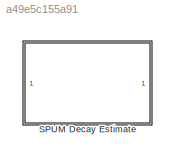
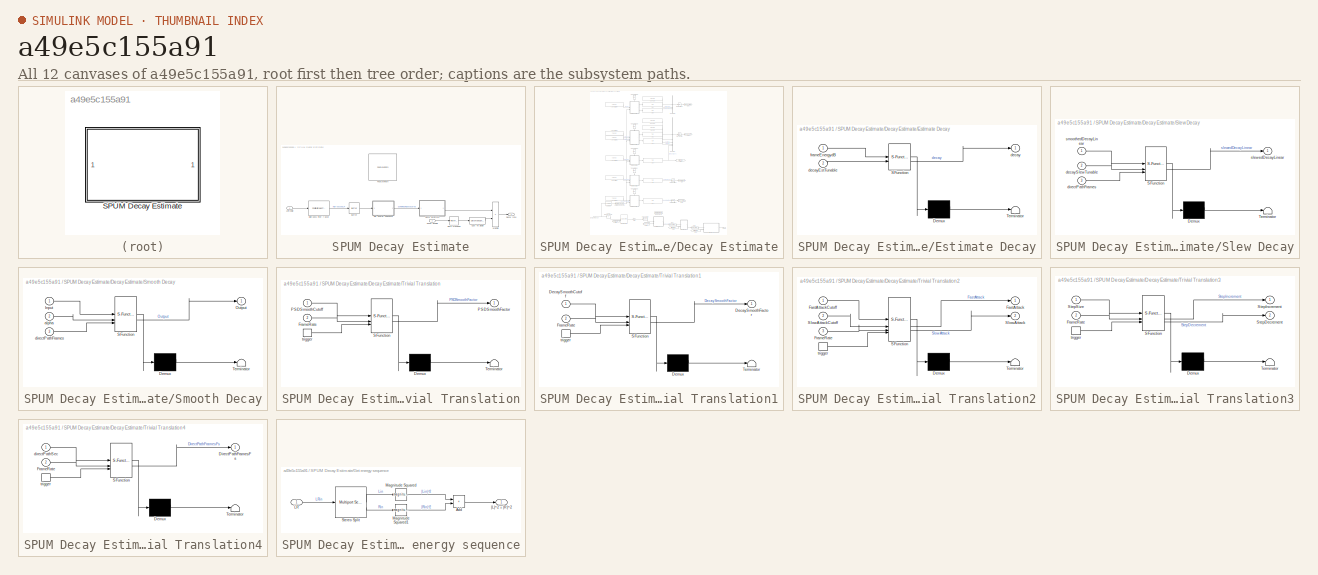
[diagram: thumbnail index - all 12 canvases of the model, root first then tree order]
MODEL slx_a49e5c155a91
KIND library
CONFIG AbsTol = auto
CONFIG EnableMultiTasking = off
CONFIG FixedStep = auto
CONFIG MaxStep = auto
CONFIG MinStep = auto
CONFIG RelTol = 1e-3
CONFIG SampleTimeConstraint = Unconstrained
CONFIG SolverName = VariableStepAuto
CONFIG StartTime = 0.0
CONFIG StopTime = 10.0
BLOCK [SubSystem] SPUM Decay Estimate
BLOCK [Buffer] SPUM Decay Estimate/Buffer
  N = frameSize
  OutputFrames = off
BLOCK [DataTypeConversion] SPUM Decay Estimate/Cast To Single
  OutDataTypeStr = single
  RndMeth = Floor
  SaturateOnIntegerOverflow = off
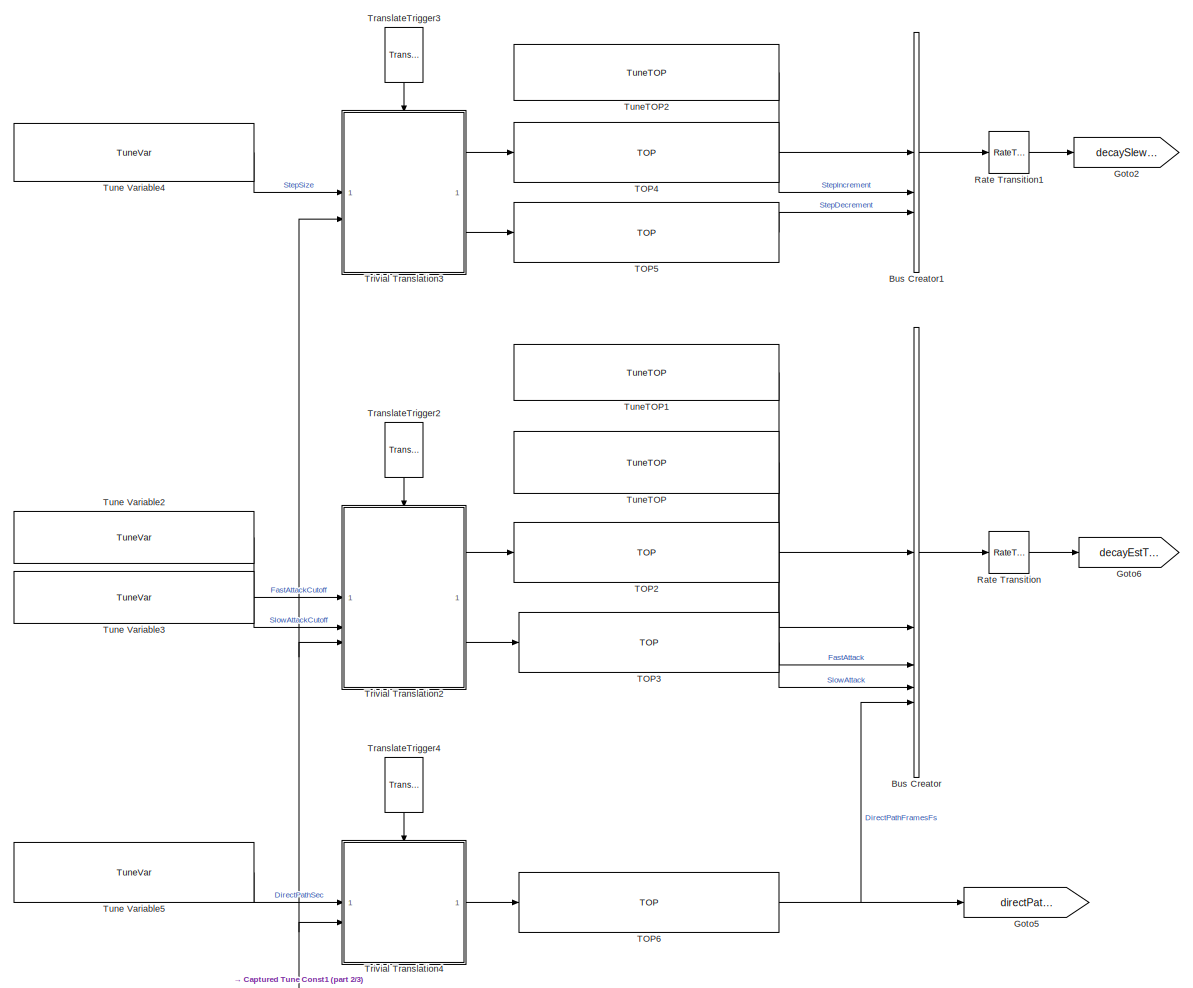
[diagram: SPUM Decay Estimate/Decay Estimate - part 1/3, top center region]
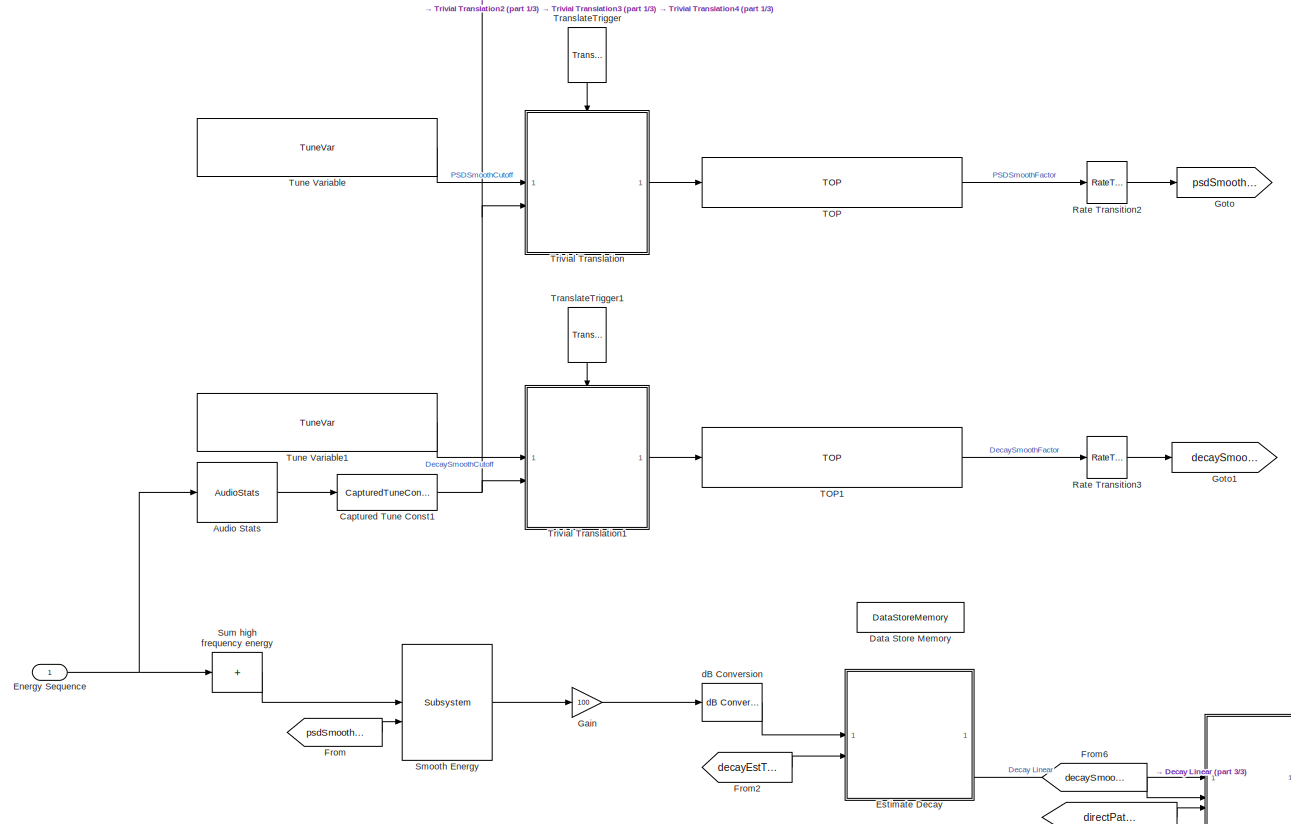
[diagram: SPUM Decay Estimate/Decay Estimate - part 2/3, bottom center region]
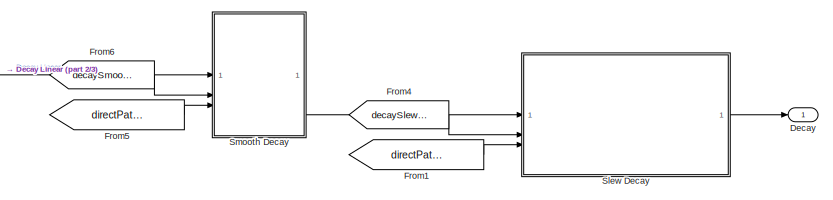
[diagram: SPUM Decay Estimate/Decay Estimate - part 3/3, bottom right region]
BLOCK [SubSystem] SPUM Decay Estimate/Decay Estimate
BLOCK [Reference] SPUM Decay Estimate/Decay Estimate/Audio Stats  REF=AudioStats/AudioStats
  SourceBlock = AudioStats/AudioStats
  SourceProductName = Bose Talaria
  SourceType = Talaria Audio Statistics
BLOCK [BusCreator] SPUM Decay Estimate/Decay Estimate/Bus Creator
  DisplayOption = bar
  InheritFromInputs = off
  Inputs = 5
  OutDataTypeStr = Bus: decayEstTunable
BLOCK [BusCreator] SPUM Decay Estimate/Decay Estimate/Bus Creator1
  DisplayOption = bar
  InheritFromInputs = off
  Inputs = 3
  OutDataTypeStr = Bus: decaySlewTunable
BLOCK [Reference] SPUM Decay Estimate/Decay Estimate/Captured Tune Const1  REF=TuneVar/CapturedTuneConst
  SourceBlock = TuneVar/CapturedTuneConst
  SourceProductName = Bose Talaria
  SourceType = Talaria Captured Constant
BLOCK [DataStoreMemory] SPUM Decay Estimate/Decay Estimate/Data Store Memory
  DataStoreName = frameEnergiesdB
  InitialValue = zeros(decayConst.lengthFrameEnergiesBuffer,1)
  OutDataTypeStr = single
  ReadBeforeWriteMsg = warning
  ShowAdditionalParam = off
  SignalType = real
  WriteAfterReadMsg = warning
  WriteAfterWriteMsg = warning
BLOCK [Outport] SPUM Decay Estimate/Decay Estimate/Decay
  VectorParamsAs1DForOutWhenUnconnected = off
BLOCK [Inport] SPUM Decay Estimate/Decay Estimate/Energy Sequence
BLOCK [SubSystem] SPUM Decay Estimate/Decay Estimate/Estimate Decay
  ErrorFcn = Stateflow.Translate.translate
  PermitHierarchicalResolution = ExplicitOnly
  SFBlockType = MATLAB Function
  TreatAsAtomicUnit = on
BLOCK [Demux] SPUM Decay Estimate/Decay Estimate/Estimate Decay/ Demux 
  Outputs = 1
BLOCK [S-Function] SPUM Decay Estimate/Decay Estimate/Estimate Decay/ SFunction 
  EnableBusSupport = off
  FunctionName = sf_sfun
  Parameters = decayConst
  PortCounts = [2 2]
  SFcnIsStateOwnerBlock = off
  SFunctionDeploymentMode = off
  Tag = Stateflow S-Function 27
BLOCK [Terminator] SPUM Decay Estimate/Decay Estimate/Estimate Decay/ Terminator 
BLOCK [Outport] SPUM Decay Estimate/Decay Estimate/Estimate Decay/decay
  VectorParamsAs1DForOutWhenUnconnected = off
BLOCK [Inport] SPUM Decay Estimate/Decay Estimate/Estimate Decay/decayEstTunable
  Port = 2
BLOCK [Inport] SPUM Decay Estimate/Decay Estimate/Estimate Decay/frameEnergydB
BLOCK [From] SPUM Decay Estimate/Decay Estimate/From
  GotoTag = psdSmoothFactor
BLOCK [From] SPUM Decay Estimate/Decay Estimate/From1
  GotoTag = directPathFramesFs
BLOCK [From] SPUM Decay Estimate/Decay Estimate/From2
  GotoTag = decayEstTunable
BLOCK [From] SPUM Decay Estimate/Decay Estimate/From4
  GotoTag = decaySlewTunable
BLOCK [From] SPUM Decay Estimate/Decay Estimate/From5
  GotoTag = directPathFramesFs
BLOCK [From] SPUM Decay Estimate/Decay Estimate/From6
  GotoTag = decaySmoothFactor
BLOCK [Gain] SPUM Decay Estimate/Decay Estimate/Gain
  Gain = 100
BLOCK [Goto] SPUM Decay Estimate/Decay Estimate/Goto
  GotoTag = psdSmoothFactor
BLOCK [Goto] SPUM Decay Estimate/Decay Estimate/Goto1
  GotoTag = decaySmoothFactor
BLOCK [Goto] SPUM Decay Estimate/Decay Estimate/Goto2
  GotoTag = decaySlewTunable
BLOCK [Goto] SPUM Decay Estimate/Decay Estimate/Goto5
  GotoTag = directPathFramesFs
BLOCK [Goto] SPUM Decay Estimate/Decay Estimate/Goto6
  GotoTag = decayEstTunable
BLOCK [RateTransition] SPUM Decay Estimate/Decay Estimate/Rate Transition
  Integrity = off
BLOCK [RateTransition] SPUM Decay Estimate/Decay Estimate/Rate Transition1
  Integrity = off
BLOCK [RateTransition] SPUM Decay Estimate/Decay Estimate/Rate Transition2
  Integrity = off
BLOCK [RateTransition] SPUM Decay Estimate/Decay Estimate/Rate Transition3
  Integrity = off
BLOCK [SubSystem] SPUM Decay Estimate/Decay Estimate/Slew Decay
  ErrorFcn = Stateflow.Translate.translate
  PermitHierarchicalResolution = ExplicitOnly
  SFBlockType = MATLAB Function
  TreatAsAtomicUnit = on
BLOCK [Demux] SPUM Decay Estimate/Decay Estimate/Slew Decay/ Demux 
  Outputs = 1
BLOCK [S-Function] SPUM Decay Estimate/Decay Estimate/Slew Decay/ SFunction 
  EnableBusSupport = off
  FunctionName = sf_sfun
  Parameters = decayConst
  PortCounts = [3 2]
  SFcnIsStateOwnerBlock = off
  SFunctionDeploymentMode = off
  Tag = Stateflow S-Function 29
BLOCK [Terminator] SPUM Decay Estimate/Decay Estimate/Slew Decay/ Terminator 
BLOCK [Inport] SPUM Decay Estimate/Decay Estimate/Slew Decay/decaySlewTunable
  Port = 2
BLOCK [Inport] SPUM Decay Estimate/Decay Estimate/Slew Decay/directPathFrames
  Port = 3
BLOCK [Outport] SPUM Decay Estimate/Decay Estimate/Slew Decay/slewedDecayLinear
  VectorParamsAs1DForOutWhenUnconnected = off
BLOCK [Inport] SPUM Decay Estimate/Decay Estimate/Slew Decay/smoothedDecayLinear
BLOCK [SubSystem] SPUM Decay Estimate/Decay Estimate/Smooth Decay
  ErrorFcn = Stateflow.Translate.translate
  PermitHierarchicalResolution = ExplicitOnly
  SFBlockType = MATLAB Function
  TreatAsAtomicUnit = on
BLOCK [Demux] SPUM Decay Estimate/Decay Estimate/Smooth Decay/ Demux 
  Outputs = 1
BLOCK [S-Function] SPUM Decay Estimate/Decay Estimate/Smooth Decay/ SFunction 
  EnableBusSupport = off
  FunctionName = sf_sfun
  Parameters = decayConst
  PortCounts = [3 2]
  SFcnIsStateOwnerBlock = off
  SFunctionDeploymentMode = off
  Tag = Stateflow S-Function 28
BLOCK [Terminator] SPUM Decay Estimate/Decay Estimate/Smooth Decay/ Terminator 
BLOCK [Inport] SPUM Decay Estimate/Decay Estimate/Smooth Decay/Input
BLOCK [Outport] SPUM Decay Estimate/Decay Estimate/Smooth Decay/Output
  VectorParamsAs1DForOutWhenUnconnected = off
BLOCK [Inport] SPUM Decay Estimate/Decay Estimate/Smooth Decay/alpha
  Port = 2
BLOCK [Inport] SPUM Decay Estimate/Decay Estimate/Smooth Decay/directPathFrames
  Port = 3
BLOCK [Reference] SPUM Decay Estimate/Decay Estimate/Smooth Energy  REF=ForwardBackwardSmooth/Subsystem
  SourceBlock = ForwardBackwardSmooth/Subsystem
  SourceType = Forward-Backward Smooth
BLOCK [Sum] SPUM Decay Estimate/Decay Estimate/Sum high frequency energy
  CollapseMode = Specified dimension
  IconShape = rectangular
  Inputs = +
BLOCK [Reference] SPUM Decay Estimate/Decay Estimate/TOP  REF=TOP/TOP
  SourceBlock = TOP/TOP
  SourceProductName = Bose Talaria
  SourceType = Talaria Target Overlay Parameter
BLOCK [Reference] SPUM Decay Estimate/Decay Estimate/TOP1  REF=TOP/TOP
  SourceBlock = TOP/TOP
  SourceProductName = Bose Talaria
  SourceType = Talaria Target Overlay Parameter
BLOCK [Reference] SPUM Decay Estimate/Decay Estimate/TOP2  REF=TOP/TOP
  SourceBlock = TOP/TOP
  SourceProductName = Bose Talaria
  SourceType = Talaria Target Overlay Parameter
BLOCK [Reference] SPUM Decay Estimate/Decay Estimate/TOP3  REF=TOP/TOP
  SourceBlock = TOP/TOP
  SourceProductName = Bose Talaria
  SourceType = Talaria Target Overlay Parameter
BLOCK [Reference] SPUM Decay Estimate/Decay Estimate/TOP4  REF=TOP/TOP
  SourceBlock = TOP/TOP
  SourceProductName = Bose Talaria
  SourceType = Talaria Target Overlay Parameter
BLOCK [Reference] SPUM Decay Estimate/Decay Estimate/TOP5  REF=TOP/TOP
  SourceBlock = TOP/TOP
  SourceProductName = Bose Talaria
  SourceType = Talaria Target Overlay Parameter
BLOCK [Reference] SPUM Decay Estimate/Decay Estimate/TOP6  REF=TOP/TOP
  SourceBlock = TOP/TOP
  SourceProductName = Bose Talaria
  SourceType = Talaria Target Overlay Parameter
BLOCK [Reference] SPUM Decay Estimate/Decay Estimate/TranslateTrigger  REF=TuneVar/TranslateTrigger
  NameLocation = left
  SourceBlock = TuneVar/TranslateTrigger
  SourceProductName = Bose Talaria
  SourceType = Talaria Translate Trigger
BLOCK [Reference] SPUM Decay Estimate/Decay Estimate/TranslateTrigger1  REF=TuneVar/TranslateTrigger
  NameLocation = left
  SourceBlock = TuneVar/TranslateTrigger
  SourceProductName = Bose Talaria
  SourceType = Talaria Translate Trigger
BLOCK [Reference] SPUM Decay Estimate/Decay Estimate/TranslateTrigger2  REF=TuneVar/TranslateTrigger
  NameLocation = left
  SourceBlock = TuneVar/TranslateTrigger
  SourceProductName = Bose Talaria
  SourceType = Talaria Translate Trigger
BLOCK [Reference] SPUM Decay Estimate/Decay Estimate/TranslateTrigger3  REF=TuneVar/TranslateTrigger
  NameLocation = left
  SourceBlock = TuneVar/TranslateTrigger
  SourceProductName = Bose Talaria
  SourceType = Talaria Translate Trigger
BLOCK [Reference] SPUM Decay Estimate/Decay Estimate/TranslateTrigger4  REF=TuneVar/TranslateTrigger
  NameLocation = left
  SourceBlock = TuneVar/TranslateTrigger
  SourceProductName = Bose Talaria
  SourceType = Talaria Translate Trigger
BLOCK [SubSystem] SPUM Decay Estimate/Decay Estimate/Trivial Translation
  ErrorFcn = Stateflow.Translate.translate
  PermitHierarchicalResolution = ExplicitOnly
  SFBlockType = MATLAB Function
  TreatAsAtomicUnit = on
BLOCK [Demux] SPUM Decay Estimate/Decay Estimate/Trivial Translation/ Demux 
  Outputs = 1
BLOCK [S-Function] SPUM Decay Estimate/Decay Estimate/Trivial Translation/ SFunction 
  EnableBusSupport = off
  FunctionName = sf_sfun
  PortCounts = [3 2]
  SFcnIsStateOwnerBlock = off
  SFunctionDeploymentMode = off
  Tag = Stateflow S-Function 30
BLOCK [Terminator] SPUM Decay Estimate/Decay Estimate/Trivial Translation/ Terminator 
BLOCK [Inport] SPUM Decay Estimate/Decay Estimate/Trivial Translation/FrameRate
  Port = 2
BLOCK [Inport] SPUM Decay Estimate/Decay Estimate/Trivial Translation/PSDSmoothCutoff
BLOCK [Outport] SPUM Decay Estimate/Decay Estimate/Trivial Translation/PSDSmoothFactor
  VectorParamsAs1DForOutWhenUnconnected = off
BLOCK [TriggerPort] SPUM Decay Estimate/Decay Estimate/Trivial Translation/trigger
  ShowOutputPort = on
  StatesWhenEnabling = held
  TriggerType = function-call
  VariantControl = Variant
BLOCK [SubSystem] SPUM Decay Estimate/Decay Estimate/Trivial Translation1
  ErrorFcn = Stateflow.Translate.translate
  PermitHierarchicalResolution = ExplicitOnly
  SFBlockType = MATLAB Function
  TreatAsAtomicUnit = on
BLOCK [Demux] SPUM Decay Estimate/Decay Estimate/Trivial Translation1/ Demux 
  Outputs = 1
BLOCK [S-Function] SPUM Decay Estimate/Decay Estimate/Trivial Translation1/ SFunction 
  EnableBusSupport = off
  FunctionName = sf_sfun
  PortCounts = [3 2]
  SFcnIsStateOwnerBlock = off
  SFunctionDeploymentMode = off
  Tag = Stateflow S-Function 32
BLOCK [Terminator] SPUM Decay Estimate/Decay Estimate/Trivial Translation1/ Terminator 
BLOCK [Inport] SPUM Decay Estimate/Decay Estimate/Trivial Translation1/DecaySmoothCutoff
BLOCK [Outport] SPUM Decay Estimate/Decay Estimate/Trivial Translation1/DecaySmoothFactor
  VectorParamsAs1DForOutWhenUnconnected = off
BLOCK [Inport] SPUM Decay Estimate/Decay Estimate/Trivial Translation1/FrameRate
  Port = 2
BLOCK [TriggerPort] SPUM Decay Estimate/Decay Estimate/Trivial Translation1/trigger
  ShowOutputPort = on
  StatesWhenEnabling = held
  TriggerType = function-call
  VariantControl = Variant
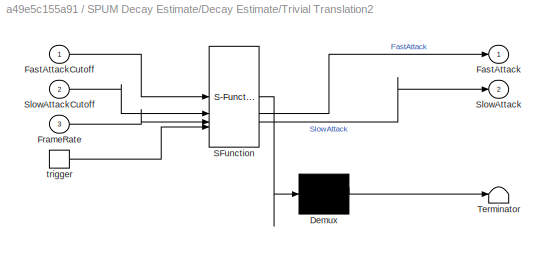
BLOCK [SubSystem] SPUM Decay Estimate/Decay Estimate/Trivial Translation2
  ErrorFcn = Stateflow.Translate.translate
  PermitHierarchicalResolution = ExplicitOnly
  SFBlockType = MATLAB Function
  TreatAsAtomicUnit = on
BLOCK [Demux] SPUM Decay Estimate/Decay Estimate/Trivial Translation2/ Demux 
  Outputs = 1
BLOCK [S-Function] SPUM Decay Estimate/Decay Estimate/Trivial Translation2/ SFunction 
  EnableBusSupport = off
  FunctionName = sf_sfun
  PortCounts = [4 3]
  SFcnIsStateOwnerBlock = off
  SFunctionDeploymentMode = off
  Tag = Stateflow S-Function 34
BLOCK [Terminator] SPUM Decay Estimate/Decay Estimate/Trivial Translation2/ Terminator 
BLOCK [Outport] SPUM Decay Estimate/Decay Estimate/Trivial Translation2/FastAttack
  VectorParamsAs1DForOutWhenUnconnected = off
BLOCK [Inport] SPUM Decay Estimate/Decay Estimate/Trivial Translation2/FastAttackCutoff
BLOCK [Inport] SPUM Decay Estimate/Decay Estimate/Trivial Translation2/FrameRate
  Port = 3
BLOCK [Outport] SPUM Decay Estimate/Decay Estimate/Trivial Translation2/SlowAttack
  Port = 2
  VectorParamsAs1DForOutWhenUnconnected = off
BLOCK [Inport] SPUM Decay Estimate/Decay Estimate/Trivial Translation2/SlowAttackCutoff
  Port = 2
BLOCK [TriggerPort] SPUM Decay Estimate/Decay Estimate/Trivial Translation2/trigger
  ShowOutputPort = on
  StatesWhenEnabling = held
  TriggerType = function-call
  VariantControl = Variant
BLOCK [SubSystem] SPUM Decay Estimate/Decay Estimate/Trivial Translation3
  ErrorFcn = Stateflow.Translate.translate
  PermitHierarchicalResolution = ExplicitOnly
  SFBlockType = MATLAB Function
  TreatAsAtomicUnit = on
BLOCK [Demux] SPUM Decay Estimate/Decay Estimate/Trivial Translation3/ Demux 
  Outputs = 1
BLOCK [S-Function] SPUM Decay Estimate/Decay Estimate/Trivial Translation3/ SFunction 
  EnableBusSupport = off
  FunctionName = sf_sfun
  PortCounts = [3 3]
  SFcnIsStateOwnerBlock = off
  SFunctionDeploymentMode = off
  Tag = Stateflow S-Function 36
BLOCK [Terminator] SPUM Decay Estimate/Decay Estimate/Trivial Translation3/ Terminator 
BLOCK [Inport] SPUM Decay Estimate/Decay Estimate/Trivial Translation3/FrameRate
  Port = 2
BLOCK [Outport] SPUM Decay Estimate/Decay Estimate/Trivial Translation3/StepDecrement
  Port = 2
  VectorParamsAs1DForOutWhenUnconnected = off
BLOCK [Outport] SPUM Decay Estimate/Decay Estimate/Trivial Translation3/StepIncrement
  VectorParamsAs1DForOutWhenUnconnected = off
BLOCK [Inport] SPUM Decay Estimate/Decay Estimate/Trivial Translation3/StepSize
BLOCK [TriggerPort] SPUM Decay Estimate/Decay Estimate/Trivial Translation3/trigger
  ShowOutputPort = on
  StatesWhenEnabling = held
  TriggerType = function-call
  VariantControl = Variant
BLOCK [SubSystem] SPUM Decay Estimate/Decay Estimate/Trivial Translation4
  ErrorFcn = Stateflow.Translate.translate
  PermitHierarchicalResolution = ExplicitOnly
  SFBlockType = MATLAB Function
  TreatAsAtomicUnit = on
BLOCK [Demux] SPUM Decay Estimate/Decay Estimate/Trivial Translation4/ Demux 
  Outputs = 1
BLOCK [S-Function] SPUM Decay Estimate/Decay Estimate/Trivial Translation4/ SFunction 
  EnableBusSupport = off
  FunctionName = sf_sfun
  PortCounts = [3 2]
  SFcnIsStateOwnerBlock = off
  SFunctionDeploymentMode = off
  Tag = Stateflow S-Function 44
BLOCK [Terminator] SPUM Decay Estimate/Decay Estimate/Trivial Translation4/ Terminator 
BLOCK [Outport] SPUM Decay Estimate/Decay Estimate/Trivial Translation4/DirectPathFramesFs
  VectorParamsAs1DForOutWhenUnconnected = off
BLOCK [Inport] SPUM Decay Estimate/Decay Estimate/Trivial Translation4/FrameRate
  Port = 2
BLOCK [Inport] SPUM Decay Estimate/Decay Estimate/Trivial Translation4/directPathSec
BLOCK [TriggerPort] SPUM Decay Estimate/Decay Estimate/Trivial Translation4/trigger
  ShowOutputPort = on
  StatesWhenEnabling = held
  TriggerType = function-call
  VariantControl = Variant
BLOCK [Reference] SPUM Decay Estimate/Decay Estimate/Tune Variable  REF=TuneVar/TuneVar
  Description = Cutoff frequency for single pole averager that smooths energy sequence for decay estimation.
  SourceBlock = TuneVar/TuneVar
  SourceProductName = Bose Talaria
  SourceType = Talaria Tune Variable
BLOCK [Reference] SPUM Decay Estimate/Decay Estimate/Tune Variable1  REF=TuneVar/TuneVar
  Description = Cutoff frequency for single pole averager that further smooths decay.
  SourceBlock = TuneVar/TuneVar
  SourceProductName = Bose Talaria
  SourceType = Talaria Tune Variable
BLOCK [Reference] SPUM Decay Estimate/Decay Estimate/Tune Variable2  REF=TuneVar/TuneVar
  Description = Cutoff frequency for single pole averager when decay parameter is increasing.
  SourceBlock = TuneVar/TuneVar
  SourceProductName = Bose Talaria
  SourceType = Talaria Tune Variable
BLOCK [Reference] SPUM Decay Estimate/Decay Estimate/Tune Variable3  REF=TuneVar/TuneVar
  Description = Cutoff frequency for single pole averager when decay parameter is decreasing (slow decay).
  SourceBlock = TuneVar/TuneVar
  SourceProductName = Bose Talaria
  SourceType = Talaria Tune Variable
BLOCK [Reference] SPUM Decay Estimate/Decay Estimate/Tune Variable4  REF=TuneVar/TuneVar
  Description = Step size for decay slewing.
  SourceBlock = TuneVar/TuneVar
  SourceProductName = Bose Talaria
  SourceType = Talaria Tune Variable
BLOCK [Reference] SPUM Decay Estimate/Decay Estimate/Tune Variable5  REF=TuneVar/TuneVar
  Description = This is the time in seconds that separates dry (or direct) and reverb parts. The larger directPathSec becomes, the more energy goes into the “impulse” because a longer period of time past “onset” is considered direct energy. Ideally this value is equivalent to an integer multiple of a frame period.
  SourceBlock = TuneVar/TuneVar
  SourceProductName = Bose Talaria
  SourceType = Talaria Tune Variable
BLOCK [Reference] SPUM Decay Estimate/Decay Estimate/TuneTOP  REF=TuneVar/TuneTOP
  Description = Prevent spurious change in slope estimation. Signal energy must overcome the noise floor before we accept current derivative as slope of the decay.
  SourceBlock = TuneVar/TuneTOP
  SourceProductName = Bose Talaria
  SourceType = Talaria Trivial Tune TOP
BLOCK [Reference] SPUM Decay Estimate/Decay Estimate/TuneTOP1  REF=TuneVar/TuneTOP
  Description = Thresold for detecting an onset strike.
  SourceBlock = TuneVar/TuneTOP
  SourceProductName = Bose Talaria
  SourceType = Talaria Trivial Tune TOP
BLOCK [Reference] SPUM Decay Estimate/Decay Estimate/TuneTOP2  REF=TuneVar/TuneTOP
  Description = Threshold to accept change in decay.
  SourceBlock = TuneVar/TuneTOP
  SourceProductName = Bose Talaria
  SourceType = Talaria Trivial Tune TOP
BLOCK [Reference] SPUM Decay Estimate/Decay Estimate/dB Conversion  REF=dspmathops/dB Conversion
  SourceBlock = dspmathops/dB Conversion
  SourceType = dB Conversion
BLOCK [Outport] SPUM Decay Estimate/Decay rate
  VectorParamsAs1DForOutWhenUnconnected = off
BLOCK [Reference] SPUM Decay Estimate/FeaturePath  REF=FeaturePath/FeaturePath
  SourceBlock = FeaturePath/FeaturePath
  SourceProductName = Bose Talaria
  SourceType = Talaria Feature Path
BLOCK [SubSystem] SPUM Decay Estimate/Get energy sequence
BLOCK [Sum] SPUM Decay Estimate/Get energy sequence/Add
  IconShape = rectangular
BLOCK [Inport] SPUM Decay Estimate/Get energy sequence/LR
BLOCK [Math] SPUM Decay Estimate/Get energy sequence/Magnitude Squared
  Operator = magnitude^2
  SignedPower = on
BLOCK [Math] SPUM Decay Estimate/Get energy sequence/Magnitude Squared1
  Operator = magnitude^2
  SignedPower = on
BLOCK [Reference] SPUM Decay Estimate/Get energy sequence/Stereo Split  REF=dspindex/Multiport
Selector
  SourceBlock = dspindex/Multiport\nSelector
  SourceType = Multiport Selector
BLOCK [Outport] SPUM Decay Estimate/Get energy sequence/|L|^2 + |R|^2
  VectorParamsAs1DForOutWhenUnconnected = off
BLOCK [Reference] SPUM Decay Estimate/High-pass filter > 6kHz  REF=PooliirLib/PooliirwithNonTrivialTranslations
  SourceBlock = PooliirLib/PooliirwithNonTrivialTranslations
  SourceType = Bose Pool IIR
BLOCK [Inport] SPUM Decay Estimate/LRtreble
BLOCK [Product] SPUM Decay Estimate/Multiply
BLOCK [RateTransition] SPUM Decay Estimate/Rate Transition
  Integrity = off
BLOCK [Inport] SPUM Decay Estimate/SPUM Enable
  Port = 2
LINE SPUM Decay Estimate/Buffer:1 -> SPUM Decay Estimate/Get energy sequence:1
LINE SPUM Decay Estimate/Cast To Single:1 -> SPUM Decay Estimate/Multiply:2
LINE SPUM Decay Estimate/Decay Estimate/Audio Stats:1 -> SPUM Decay Estimate/Decay Estimate/Captured Tune Const1:1
LINE SPUM Decay Estimate/Decay Estimate/Bus Creator1:1 -> SPUM Decay Estimate/Decay Estimate/Rate Transition1:1
LINE SPUM Decay Estimate/Decay Estimate/Bus Creator:1 -> SPUM Decay Estimate/Decay Estimate/Rate Transition:1
NET SPUM Decay Estimate/Decay Estimate/Captured Tune Const1:1 -> SPUM Decay Estimate/Decay Estimate/Trivial Translation1:2, SPUM Decay Estimate/Decay Estimate/Trivial Translation2:3, SPUM Decay Estimate/Decay Estimate/Trivial Translation3:2, SPUM Decay Estimate/Decay Estimate/Trivial Translation4:2, SPUM Decay Estimate/Decay Estimate/Trivial Translation:2
NET SPUM Decay Estimate/Decay Estimate/Energy Sequence:1 -> SPUM Decay Estimate/Decay Estimate/Audio Stats:1, SPUM Decay Estimate/Decay Estimate/Sum high frequency energy:1
LINE SPUM Decay Estimate/Decay Estimate/Estimate Decay:1 -> SPUM Decay Estimate/Decay Estimate/Smooth Decay:1
LINE SPUM Decay Estimate/Decay Estimate/From1:1 -> SPUM Decay Estimate/Decay Estimate/Slew Decay:3
LINE SPUM Decay Estimate/Decay Estimate/From2:1 -> SPUM Decay Estimate/Decay Estimate/Estimate Decay:2
LINE SPUM Decay Estimate/Decay Estimate/From4:1 -> SPUM Decay Estimate/Decay Estimate/Slew Decay:2
LINE SPUM Decay Estimate/Decay Estimate/From5:1 -> SPUM Decay Estimate/Decay Estimate/Smooth Decay:3
LINE SPUM Decay Estimate/Decay Estimate/From6:1 -> SPUM Decay Estimate/Decay Estimate/Smooth Decay:2
LINE SPUM Decay Estimate/Decay Estimate/From:1 -> SPUM Decay Estimate/Decay Estimate/Smooth Energy:2
LINE SPUM Decay Estimate/Decay Estimate/Gain:1 -> SPUM Decay Estimate/Decay Estimate/dB Conversion:1
LINE SPUM Decay Estimate/Decay Estimate/Rate Transition1:1 -> SPUM Decay Estimate/Decay Estimate/Goto2:1
LINE SPUM Decay Estimate/Decay Estimate/Rate Transition2:1 -> SPUM Decay Estimate/Decay Estimate/Goto:1
LINE SPUM Decay Estimate/Decay Estimate/Rate Transition3:1 -> SPUM Decay Estimate/Decay Estimate/Goto1:1
LINE SPUM Decay Estimate/Decay Estimate/Rate Transition:1 -> SPUM Decay Estimate/Decay Estimate/Goto6:1
LINE SPUM Decay Estimate/Decay Estimate/Slew Decay:1 -> SPUM Decay Estimate/Decay Estimate/Decay:1
LINE SPUM Decay Estimate/Decay Estimate/Smooth Decay:1 -> SPUM Decay Estimate/Decay Estimate/Slew Decay:1
LINE SPUM Decay Estimate/Decay Estimate/Smooth Energy:1 -> SPUM Decay Estimate/Decay Estimate/Gain:1
LINE SPUM Decay Estimate/Decay Estimate/Sum high frequency energy:1 -> SPUM Decay Estimate/Decay Estimate/Smooth Energy:1
LINE SPUM Decay Estimate/Decay Estimate/TOP1:1 -> SPUM Decay Estimate/Decay Estimate/Rate Transition3:1
LINE SPUM Decay Estimate/Decay Estimate/TOP2:1 -> SPUM Decay Estimate/Decay Estimate/Bus Creator:3
LINE SPUM Decay Estimate/Decay Estimate/TOP3:1 -> SPUM Decay Estimate/Decay Estimate/Bus Creator:4
LINE SPUM Decay Estimate/Decay Estimate/TOP4:1 -> SPUM Decay Estimate/Decay Estimate/Bus Creator1:2
LINE SPUM Decay Estimate/Decay Estimate/TOP5:1 -> SPUM Decay Estimate/Decay Estimate/Bus Creator1:3
NET SPUM Decay Estimate/Decay Estimate/TOP6:1 -> SPUM Decay Estimate/Decay Estimate/Bus Creator:5, SPUM Decay Estimate/Decay Estimate/Goto5:1
LINE SPUM Decay Estimate/Decay Estimate/TOP:1 -> SPUM Decay Estimate/Decay Estimate/Rate Transition2:1
LINE SPUM Decay Estimate/Decay Estimate/TranslateTrigger1:1 -> SPUM Decay Estimate/Decay Estimate/Trivial Translation1:trigger
LINE SPUM Decay Estimate/Decay Estimate/TranslateTrigger2:1 -> SPUM Decay Estimate/Decay Estimate/Trivial Translation2:trigger
LINE SPUM Decay Estimate/Decay Estimate/TranslateTrigger3:1 -> SPUM Decay Estimate/Decay Estimate/Trivial Translation3:trigger
LINE SPUM Decay Estimate/Decay Estimate/TranslateTrigger4:1 -> SPUM Decay Estimate/Decay Estimate/Trivial Translation4:trigger
LINE SPUM Decay Estimate/Decay Estimate/TranslateTrigger:1 -> SPUM Decay Estimate/Decay Estimate/Trivial Translation:trigger
LINE SPUM Decay Estimate/Decay Estimate/Trivial Translation1:1 -> SPUM Decay Estimate/Decay Estimate/TOP1:1
LINE SPUM Decay Estimate/Decay Estimate/Trivial Translation2:1 -> SPUM Decay Estimate/Decay Estimate/TOP2:1
LINE SPUM Decay Estimate/Decay Estimate/Trivial Translation2:2 -> SPUM Decay Estimate/Decay Estimate/TOP3:1
LINE SPUM Decay Estimate/Decay Estimate/Trivial Translation3:1 -> SPUM Decay Estimate/Decay Estimate/TOP4:1
LINE SPUM Decay Estimate/Decay Estimate/Trivial Translation3:2 -> SPUM Decay Estimate/Decay Estimate/TOP5:1
LINE SPUM Decay Estimate/Decay Estimate/Trivial Translation4:1 -> SPUM Decay Estimate/Decay Estimate/TOP6:1
LINE SPUM Decay Estimate/Decay Estimate/Trivial Translation:1 -> SPUM Decay Estimate/Decay Estimate/TOP:1
LINE SPUM Decay Estimate/Decay Estimate/Tune Variable1:1 -> SPUM Decay Estimate/Decay Estimate/Trivial Translation1:1
LINE SPUM Decay Estimate/Decay Estimate/Tune Variable2:1 -> SPUM Decay Estimate/Decay Estimate/Trivial Translation2:1
LINE SPUM Decay Estimate/Decay Estimate/Tune Variable3:1 -> SPUM Decay Estimate/Decay Estimate/Trivial Translation2:2
LINE SPUM Decay Estimate/Decay Estimate/Tune Variable4:1 -> SPUM Decay Estimate/Decay Estimate/Trivial Translation3:1
LINE SPUM Decay Estimate/Decay Estimate/Tune Variable5:1 -> SPUM Decay Estimate/Decay Estimate/Trivial Translation4:1
LINE SPUM Decay Estimate/Decay Estimate/Tune Variable:1 -> SPUM Decay Estimate/Decay Estimate/Trivial Translation:1
LINE SPUM Decay Estimate/Decay Estimate/TuneTOP1:1 -> SPUM Decay Estimate/Decay Estimate/Bus Creator:1
LINE SPUM Decay Estimate/Decay Estimate/TuneTOP2:1 -> SPUM Decay Estimate/Decay Estimate/Bus Creator1:1
LINE SPUM Decay Estimate/Decay Estimate/TuneTOP:1 -> SPUM Decay Estimate/Decay Estimate/Bus Creator:2
LINE SPUM Decay Estimate/Decay Estimate/dB Conversion:1 -> SPUM Decay Estimate/Decay Estimate/Estimate Decay:1
LINE SPUM Decay Estimate/Decay Estimate:1 -> SPUM Decay Estimate/Multiply:1
LINE SPUM Decay Estimate/Get energy sequence/Add:1 -> SPUM Decay Estimate/Get energy sequence/|L|^2 + |R|^2:1
LINE SPUM Decay Estimate/Get energy sequence/LR:1 -> SPUM Decay Estimate/Get energy sequence/Stereo Split:1
LINE SPUM Decay Estimate/Get energy sequence/Magnitude Squared1:1 -> SPUM Decay Estimate/Get energy sequence/Add:2
LINE SPUM Decay Estimate/Get energy sequence/Magnitude Squared:1 -> SPUM Decay Estimate/Get energy sequence/Add:1
LINE SPUM Decay Estimate/Get energy sequence/Stereo Split:1 -> SPUM Decay Estimate/Get energy sequence/Magnitude Squared:1
LINE SPUM Decay Estimate/Get energy sequence/Stereo Split:2 -> SPUM Decay Estimate/Get energy sequence/Magnitude Squared1:1
LINE SPUM Decay Estimate/Get energy sequence:1 -> SPUM Decay Estimate/Decay Estimate:1
LINE SPUM Decay Estimate/High-pass filter > 6kHz:1 -> SPUM Decay Estimate/Buffer:1
LINE SPUM Decay Estimate/LRtreble:1 -> SPUM Decay Estimate/High-pass filter > 6kHz:1
LINE SPUM Decay Estimate/Multiply:1 -> SPUM Decay Estimate/Decay rate:1
LINE SPUM Decay Estimate/Rate Transition:1 -> SPUM Decay Estimate/Cast To Single:1
LINE SPUM Decay Estimate/SPUM Enable:1 -> SPUM Decay Estimate/Rate Transition:1
note: NET lines group one-source signal fan-out (src -> all destinations, sorted); 1:1 wires keep LINE
CHART SPUM Decay Estimate/Decay Estimate/Estimate Decay states=1 transitions=1
  STATE_LABEL 'eML_blk_kernel()'
  STATE_LABEL "SCRIPT:\nfunction decay = fcn(frameEnergydB, decayEstTunable, decayConst)\n% Estimate and output decay on linear scale \n\nglobal frameEnergiesdB; % Buffer holding frame energies in dB\npersistent onsetOn;  % Flag to indicate onset strike is on\npersistent onsetOff; % Flag to indicate onset strike is off\npersistent onsetCounter; \npersistent noOnsetOnOffCounter;     % No activity counter, 'gcounter' in A...<+3608ch>"
CHART SPUM Decay Estimate/Decay Estimate/Smooth Decay states=1 transitions=1
  STATE_LABEL 'eML_blk_kernel()'
  STATE_LABEL 'SCRIPT:\nfunction Output = fcn(Input, alpha, directPathFrames, decayConst)\n% This is basically the same as Forward-backward Smooth block.\n% However as the initial conditions depend on a TOP and build-time config,\n% a Matlab implementation was done for simplification.\n\npersistent lastInput;\npersistent lastOutput;\nif isempty(lastInput); lastInput = single(undb10(decayConst.decayDefaultSlope * directP...<+320ch>'
CHART SPUM Decay Estimate/Decay Estimate/Slew Decay states=1 transitions=1
  STATE_LABEL 'eML_blk_kernel()'
  STATE_LABEL 'SCRIPT:\nfunction slewedDecayLinear = fcn(smoothedDecayLinear, decaySlewTunable, decayConst, directPathFrames)\n% Control how abruptly the decay can change from frame to frame.\nepsf = single(eps);\npersistent prevSmoothedDecaydB;\npersistent prevDelta; % difference of current and past decay in dB\npersistent prevStepSize;\n\nif isempty(prevDelta); prevDelta = single(0); end\nif isempty(prevStepSize); prev...<+1301ch>'
CHART SPUM Decay Estimate/Decay Estimate/Trivial Translation states=1 transitions=1
  STATE_LABEL 'eML_blk_kernel()'
  STATE_LABEL 'SCRIPT:\nfunction PSDSmoothFactor  = fcn(PSDSmoothCutoff, FrameRate)\n% Cutoff is the inverse of time constant in Hz. So this function\n% basically converts reciprocal of time constant to first order iir\n% filter coefficient.\n% Reference: https://bosecorp.sharepoint.com/sites/ASD3/DSPTeam/Shared%20Documents/DSP_Topics/Comparison%20of%20time%20constant%20conversion%20methods.docx\nwn = 2 * pi * PSDSmoo...<+75ch>'
CHART SPUM Decay Estimate/Decay Estimate/Trivial Translation1 states=1 transitions=1
  STATE_LABEL 'eML_blk_kernel()'
  STATE_LABEL 'SCRIPT:\nfunction DecaySmoothFactor  = fcn(DecaySmoothCutoff, FrameRate)\n% Cutoff is the inverse of time constant in Hz. So this function\n% basically converts reciprocal of time constant to first order iir\n% filter coefficient.\n% Reference: https://bosecorp.sharepoint.com/sites/ASD3/DSPTeam/Shared%20Documents/DSP_Topics/Comparison%20of%20time%20constant%20conversion%20methods.docx\nwn = 2 * pi * Dec...<+83ch>'
CHART SPUM Decay Estimate/Decay Estimate/Trivial Translation2 states=1 transitions=1
  STATE_LABEL 'eML_blk_kernel()'
  STATE_LABEL 'SCRIPT:\nfunction [FastAttack, SlowAttack] = fcn(FastAttackCutoff, SlowAttackCutoff, FrameRate)\n% Cutoff is the inverse of time constant in Hz. So this function\n% basically converts reciprocal of time constant to first order iir\n% filter coefficient.\n% Reference: https://bosecorp.sharepoint.com/sites/ASD3/DSPTeam/Shared%20Documents/DSP_Topics/Comparison%20of%20time%20constant%20conversion%20methods...<+445ch>'
CHART SPUM Decay Estimate/Decay Estimate/Trivial Translation3 states=1 transitions=1
  STATE_LABEL 'eML_blk_kernel()'
  STATE_LABEL "SCRIPT:\nfunction [StepIncrement, StepDecrement] = fcn(StepSize, FrameRate)\n\nif StepSize.Value >= 0\n    StepIncrement = StepSize.Value/FrameRate;\n    StepDecrement = -StepSize.Value/FrameRate;\nelse\n    TranslateError('Step size for slewing should be greater than or equal to zero.');\n    StepIncrement = 0;\n    StepDecrement = 0;\nend"
CHART SPUM Decay Estimate/Decay Estimate/Trivial Translation4 states=1 transitions=1
  STATE_LABEL 'eML_blk_kernel()'
  STATE_LABEL 'SCRIPT:\nfunction DirectPathFramesFs  = fcn(directPathSec, FrameRate)\n\n% Convert delay in seconds to number of full-rate frames\nDirectPathFramesFs = round(directPathSec.Value*FrameRate);\n\nend'
CHART  states=0 transitions=0
CHART  states=0 transitions=0
CHART  states=0 transitions=0
CHART  states=0 transitions=0
CHART  states=0 transitions=0
CHART  states=0 transitions=0
CHART  states=0 transitions=0
CHART  states=0 transitions=0
